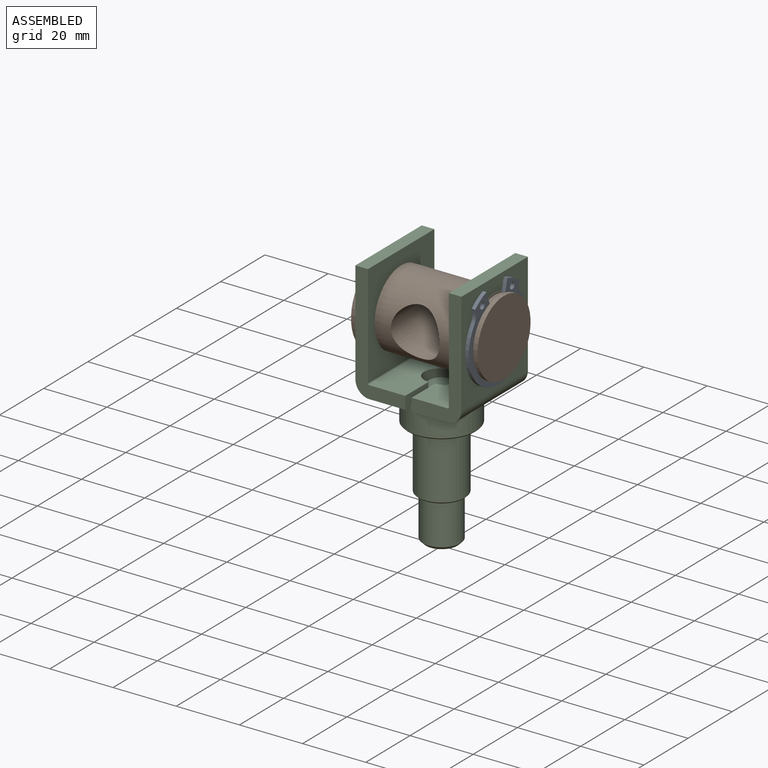
[diagram: assembled view]
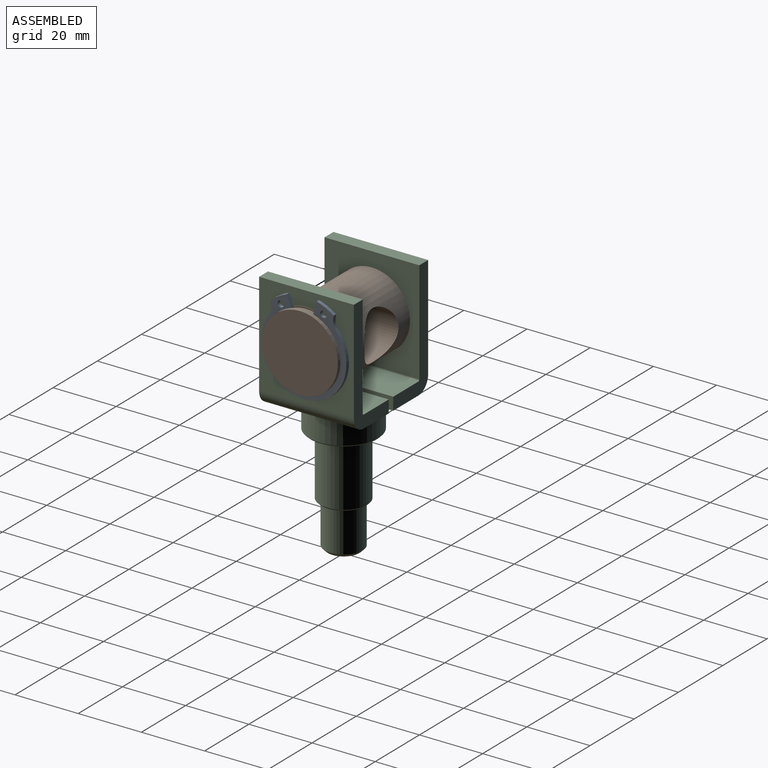
[diagram: assembled view, second angle]
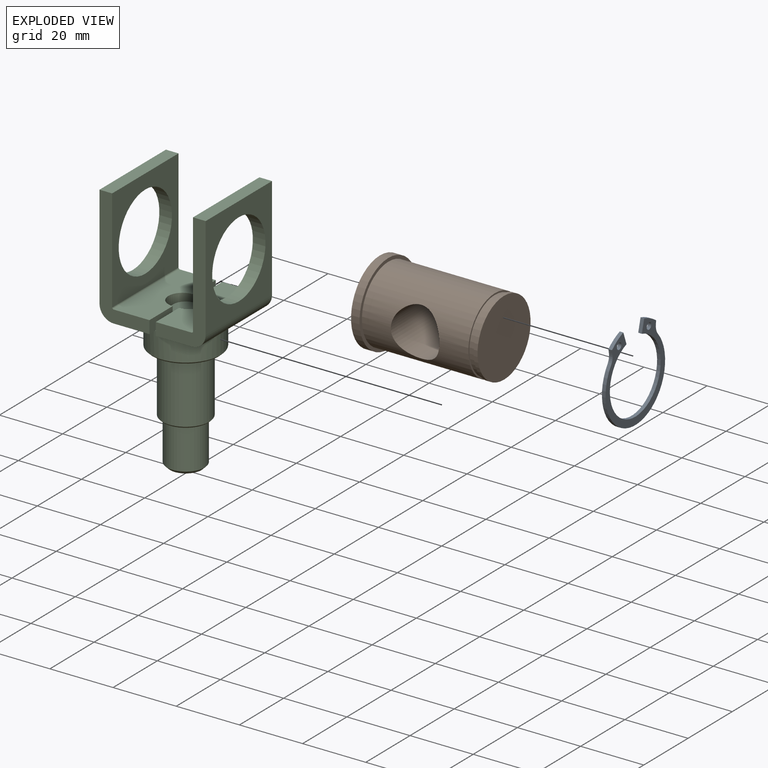
[diagram: exploded view]
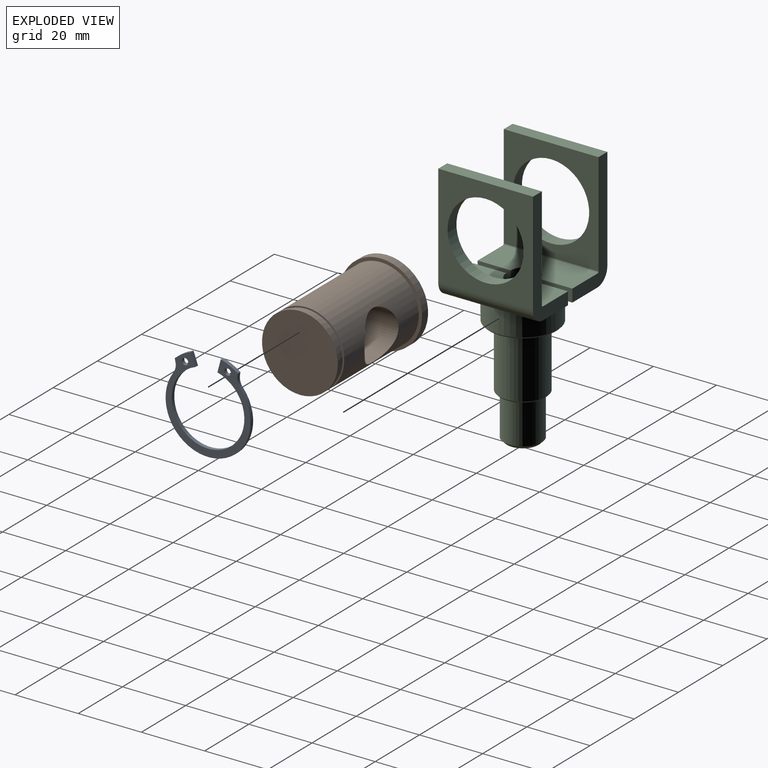
[diagram: exploded view, second angle]
ASSEMBLY  parts=3 mates=3
PART A: 14 faces, bbox 26.9x1.2x28.8 mm
  f0: plane 3.95x1.25mm, normal (0.95,0,0.3), area 4.8mm2, adj f1,f10,f12,f13
  f1: cylinder r=15.64mm len=5.27mm, axis (0,1,0), area 6.9mm2, adj f0,f2,f12,f13
  f2: plane 1.15x1.05mm, normal (-0.99,0,-0.17), area 1.2mm2, adj f1,f3,f12,f13
  f3: cylinder r=4mm len=3.13mm, axis (0,1,0), area 3.8mm2, adj f2,f4,f12,f13
  f4: cylinder r=13.46mm len=26.93mm, axis (0,1,0), area 69.2mm2, adj f3,f5,f12,f13
  f5: cylinder r=4mm len=3.13mm, axis (0,1,0), area 3.8mm2, adj f4,f6,f12,f13
  f6: plane 1.15x1.05mm, normal (0.99,0,-0.17), area 1.2mm2, adj f5,f7,f12,f13
  f7: cylinder r=15.64mm len=5.27mm, axis (0,1,0), area 6.9mm2, adj f6,f8,f12,f13
  f8: plane 3.95x1.25mm, normal (-0.95,0,0.3), area 4.8mm2, adj f7,f10,f12,f13
  f9: cylinder r=1.03mm len=2.05mm, axis (0,1,0), area 7.4mm2, adj f12,f13
  f10: cylinder r=11.5mm len=23mm, axis (0,1,0), area 75mm2, adj f0,f8,f12,f13
  f11: cylinder r=1.03mm len=2.05mm, axis (0,1,0), area 7.4mm2, adj f12,f13
  f12: plane 28.81x26.93mm, normal (0,-1,0), area 168.9mm2, adj f0,f1,f2,f3,f4,f5,f6,f7
  f13: plane 28.81x26.93mm, normal (0,1,0), area 168.9mm2, adj f0,f1,f2,f3,f4,f5,f6,f7
PART B: 10 faces, bbox 39.3x26.1x26.1 mm
  f0: cylinder r=12mm len=33.7mm, axis (-1,0,0), area 2145.6mm2, adj f7,f8,f9
  f1: cylinder r=13.05mm len=26.1mm, axis (-1,0,0), area 221.4mm2, adj f2,f8
  f2: plane 26.1x26.1mm, normal (-1,0,0), area 535mm2, adj f1
  f3: plane 24x24mm, normal (1,0,0), area 452.4mm2, adj f4
  f4: cylinder r=12mm len=24mm, axis (-1,0,0), area 90.5mm2, adj f3,f5
  f5: plane 24x24mm, normal (-1,0,0), area 36.9mm2, adj f4,f6
  f6: cylinder r=11.5mm len=23mm, axis (-1,0,0), area 122.8mm2, adj f5,f7
  f7: plane 24x24mm, normal (1,0,0), area 36.9mm2, adj f0,f6
  f8: plane 26.1x26.1mm, normal (1,0,0), area 82.6mm2, adj f0,f1
  f9: cylinder r=7.7mm len=24mm, axis (0,1,0), area 1030.3mm2, adj f0
PART C: 48 faces, bbox 33.6x30x80.1 mm
  f0: plane 20x11mm, normal (0,0,1), area 39.9mm2, adj f2,f13,f14,f17,f18,f31,f34,f35
  f1: cylinder r=11mm len=22mm, axis (0,0,1), area 518.4mm2, adj f12,f13
  f2: cylinder r=4.5mm len=9mm, axis (0,0,1), area 42.4mm2, adj f0,f10
  f3: plane 8x8mm, normal (0,0,1), area 50.3mm2, adj f10
  f4: plane 10x10mm, normal (0,0,-1), area 78.5mm2, adj f9
  f5: cylinder r=6mm len=13mm, axis (0,0,1), area 490.1mm2, adj f6,f9
  f6: plane 14x14mm, normal (0,0,-1), area 40.8mm2, adj f5,f11
  f7: cylinder r=7.5mm len=19.5mm, axis (0,0,1), area 918.9mm2, adj f8,f11
  f8: plane 21x21mm, normal (0,0,-1), area 169.6mm2, adj f7,f12
  f9: cone r=6mm half-angle=45deg, axis (0,0,1), area 48.9mm2, adj f4,f5
  f10: cone r=4mm half-angle=45deg, axis (0,0,-1), area 18.9mm2, adj f2,f3
  f11: cone r=7.5mm half-angle=45deg, axis (0,0,1), area 32.2mm2, adj f6,f7
  f12: cone r=11mm half-angle=45deg, axis (0,0,1), area 47.8mm2, adj f1,f8
  f13: cone r=10mm half-angle=45deg, axis (0,0,-1), area 93.3mm2, adj f0,f1,f19,f36
  f14: plane 10.5x4mm, normal (1,0,0), area 42mm2, adj f0,f15,f18,f19,f20
  f15: plane 11.3x4mm, normal (0,-1,0), area 45.2mm2, adj f14,f19,f20,f27
  f16: plane 11.3x4mm, normal (0,1,0), area 45.2mm2, adj f17,f19,f20,f28
  f17: plane 10.5x4mm, normal (1,0,0), area 42mm2, adj f0,f16,f18,f19,f20
  f18: cylinder r=4.5mm len=9mm, axis (0,0,-1), area 56.5mm2, adj f0,f14,f17,f20
  f19: plane 30x11.3mm, normal (0,0,-1), area 201.9mm2, adj f13,f14,f15,f16,f17,f29
  f20: plane 30x11.3mm, normal (0,0,1), area 307.2mm2, adj f14,f15,f16,f17,f18,f30
  f21: plane 32.6x4mm, normal (0,1,0), area 130.4mm2, adj f24,f25,f26,f28
  f22: plane 32.6x4mm, normal (0,-1,0), area 130.4mm2, adj f24,f25,f26,f27
  f23: cylinder r=12.05mm len=24.1mm, axis (-1,0,0), area 302.8mm2, adj f25,f26
  f24: plane 30x4mm, normal (0,0,1), area 120mm2, adj f21,f22,f25,f26
  f25: plane 32.6x30mm, normal (-1,0,0), area 521.8mm2, adj f21,f22,f23,f24,f29
  f26: plane 32.6x30mm, normal (1,0,0), area 521.8mm2, adj f21,f22,f23,f24,f30
  f27: plane 4.5x4.5mm, normal (0,-1,0), area 15.7mm2, adj f15,f22,f29,f30
  f28: plane 4.5x4.5mm, normal (0,1,0), area 15.7mm2, adj f16,f21,f29,f30
  f29: cylinder r=4.5mm len=30mm, axis (0,-1,0), area 212.1mm2, adj f19,f25,f27,f28
  f30: cylinder r=0.5mm len=30mm, axis (0,-1,0), area 23.6mm2, adj f20,f26,f27,f28
  f31: plane 10.5x4mm, normal (-1,0,0), area 42mm2, adj f0,f32,f35,f36,f37
  f32: plane 11.3x4mm, normal (0,-1,0), area 45.2mm2, adj f31,f36,f37,f44
  f33: plane 11.3x4mm, normal (0,1,0), area 45.2mm2, adj f34,f36,f37,f45
  f34: plane 10.5x4mm, normal (-1,0,0), area 42mm2, adj f0,f33,f35,f36,f37
  f35: cylinder r=4.5mm len=9mm, axis (0,0,-1), area 56.5mm2, adj f0,f31,f34,f37
  f36: plane 30x11.3mm, normal (0,0,-1), area 201.9mm2, adj f13,f31,f32,f33,f34,f46
  f37: plane 30x11.3mm, normal (0,0,1), area 307.2mm2, adj f31,f32,f33,f34,f35,f47
  f38: plane 32.6x4mm, normal (0,1,0), area 130.4mm2, adj f41,f42,f43,f45
  f39: plane 32.6x4mm, normal (0,-1,0), area 130.4mm2, adj f41,f42,f43,f44
  f40: cylinder r=12.05mm len=24.1mm, axis (1,0,0), area 302.8mm2, adj f42,f43
  f41: plane 30x4mm, normal (0,0,1), area 120mm2, adj f38,f39,f42,f43
  f42: plane 32.6x30mm, normal (1,0,0), area 521.8mm2, adj f38,f39,f40,f41,f46
  f43: plane 32.6x30mm, normal (-1,0,0), area 521.8mm2, adj f38,f39,f40,f41,f47
  f44: plane 4.5x4.5mm, normal (0,-1,0), area 15.7mm2, adj f32,f39,f46,f47
  f45: plane 4.5x4.5mm, normal (0,1,0), area 15.7mm2, adj f33,f38,f46,f47
  f46: cylinder r=4.5mm len=30mm, axis (0,-1,0), area 212.1mm2, adj f36,f42,f44,f45
  f47: cylinder r=0.5mm len=30mm, axis (0,-1,0), area 23.6mm2, adj f37,f43,f44,f45
PLACE A rot(axis=(0.02,-0.02,1),90deg) t=(16.85,0,20.45)mm
PLACE B rot(axis=(-1,0,0),179.8deg) t=(0,0,20.45)mm
PLACE C at identity fixed
MATE parallel C.f40 <-> B.f0  axis (-1,0,0) through (-16.8,0,20.45)mm
MATE ball B.f9 <-> C.f23  axis (0,-1,0) through (0,0,20.45)mm
MATE revolute B.f0 <-> A.f10  axis (1,0,0) through (16.85,0,20.45)mm
